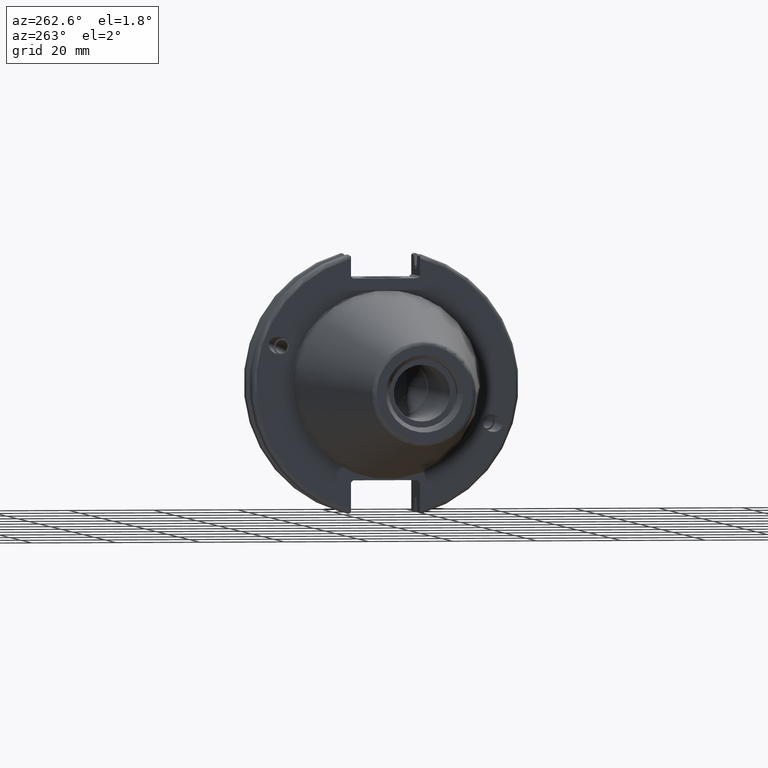
[diagram: clean part render]
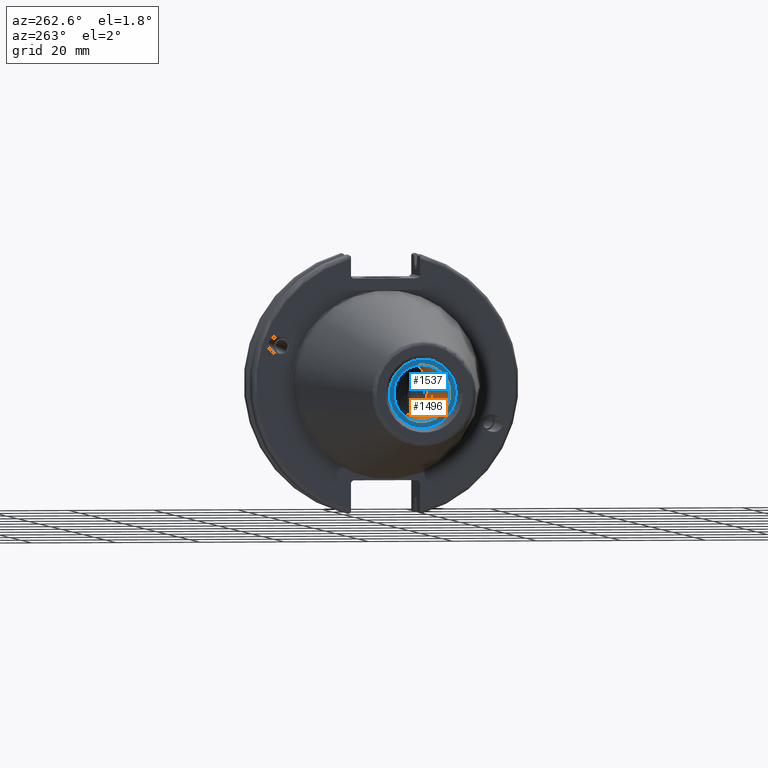
[diagram: same view with the hole feature highlighted: cylindrical wall and planar end face, labeled with their STEP entity ids]
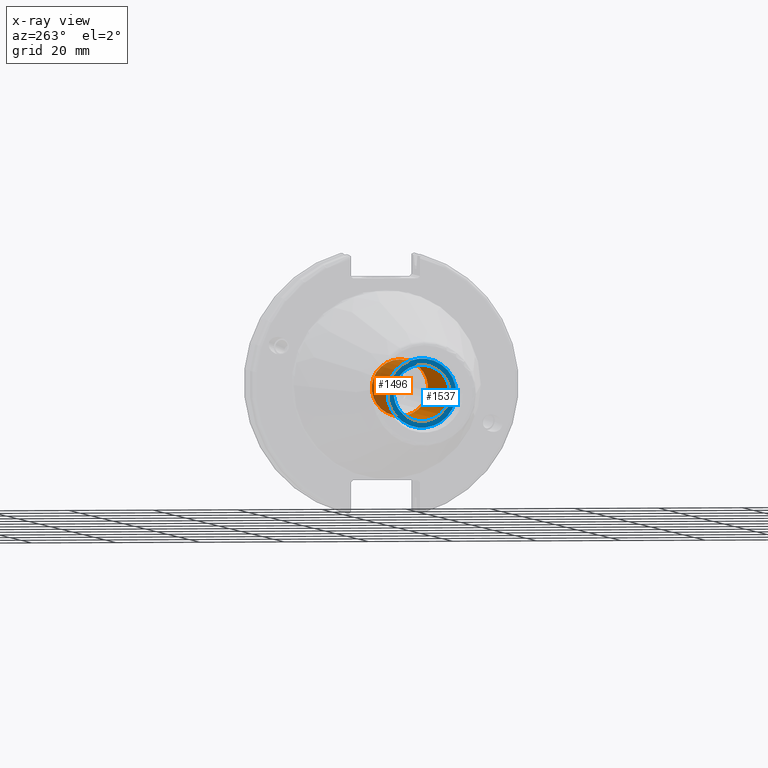
[diagram: x-ray of the same camera — body ghosted, the hole faces saturated]
A machine part, auxiliary view. The highlighted faces form one hole feature of diameter 13.3858 mm: the cylindrical wall (entity #1496, orange) and its adjacent planar end face (entity #1537, blue) — they share a circular edge in the B-rep.
The next image is the same camera in x-ray (body ghosted, the hole faces saturated) — the bore reads through the body.
Wall:
#97=CYLINDRICAL_SURFACE('',#1663,6.6929);
#202=LINE('',#2638,#296);
#296=VECTOR('',#1986,6.6929);
#396=FACE_OUTER_BOUND('',#489,.T.);
#489=EDGE_LOOP('',(#1202,#1203,#1204,#1205));
#582=CIRCLE('',#1662,6.6929);
#583=CIRCLE('',#1664,6.6929);
#705=VERTEX_POINT('',#2632);
#706=VERTEX_POINT('',#2636);
#888=EDGE_CURVE('',#705,#705,#582,.T.);
#890=EDGE_CURVE('',#706,#706,#583,.T.);
#891=EDGE_CURVE('',#706,#705,#202,.T.);
#1202=ORIENTED_EDGE('',*,*,#890,.F.);
#1203=ORIENTED_EDGE('',*,*,#891,.T.);
#1204=ORIENTED_EDGE('',*,*,#888,.F.);
#1205=ORIENTED_EDGE('',*,*,#891,.F.);
#1496=ADVANCED_FACE('',(#396),#97,.F.);
#1662=AXIS2_PLACEMENT_3D('',#2633,#1979,#1980);
#1663=AXIS2_PLACEMENT_3D('',#2635,#1982,#1983);
#1664=AXIS2_PLACEMENT_3D('',#2637,#1984,#1985);
#1979=DIRECTION('center_axis',(-1.,0.,0.));
#1980=DIRECTION('ref_axis',(0.,0.,1.));
#1982=DIRECTION('center_axis',(-1.,0.,0.));
#1983=DIRECTION('ref_axis',(0.,0.,1.));
#1984=DIRECTION('center_axis',(1.,0.,0.));
#1985=DIRECTION('ref_axis',(0.,0.,1.));
#1986=DIRECTION('',(1.,0.,0.));
#2632=CARTESIAN_POINT('',(-23.25,-8.19643856201332E-16,-6.6929));
#2633=CARTESIAN_POINT('Origin',(-23.25,0.,0.));
#2635=CARTESIAN_POINT('Origin',(-45.75,0.,0.));
#2636=CARTESIAN_POINT('',(-63.45,8.19643856201332E-16,-6.6929));
#2637=CARTESIAN_POINT('Origin',(-63.45,0.,0.));
#2638=CARTESIAN_POINT('',(-45.75,-8.19643856201332E-16,-6.6929));
End face:
#120=FACE_BOUND('',#536,.T.);
#154=PLANE('',#1731);
#437=FACE_OUTER_BOUND('',#535,.T.);
#535=EDGE_LOOP('',(#1424));
#536=EDGE_LOOP('',(#1425));
#583=CIRCLE('',#1664,6.6929);
#610=CIRCLE('',#1732,8.14999999999999);
#706=VERTEX_POINT('',#2636);
#761=VERTEX_POINT('',#2940);
#890=EDGE_CURVE('',#706,#706,#583,.T.);
#986=EDGE_CURVE('',#761,#761,#610,.T.);
#1424=ORIENTED_EDGE('',*,*,#986,.F.);
#1425=ORIENTED_EDGE('',*,*,#890,.T.);
#1537=ADVANCED_FACE('',(#437,#120),#154,.T.);
#1664=AXIS2_PLACEMENT_3D('',#2637,#1984,#1985);
#1731=AXIS2_PLACEMENT_3D('',#2939,#2163,#2164);
#1732=AXIS2_PLACEMENT_3D('',#2941,#2165,#2166);
#1984=DIRECTION('center_axis',(1.,0.,0.));
#1985=DIRECTION('ref_axis',(0.,0.,1.));
#2163=DIRECTION('center_axis',(-1.,0.,0.));
#2164=DIRECTION('ref_axis',(0.,0.,1.));
#2165=DIRECTION('center_axis',(1.,0.,0.));
#2166=DIRECTION('ref_axis',(0.,0.,-1.));
#2636=CARTESIAN_POINT('',(-63.45,8.19643856201332E-16,-6.6929));
#2637=CARTESIAN_POINT('Origin',(-63.45,0.,0.));
#2939=CARTESIAN_POINT('Origin',(-63.45,8.14999999999999,0.));
#2940=CARTESIAN_POINT('',(-63.45,-8.14999999999999,-9.98087141305092E-16));
#2941=CARTESIAN_POINT('Origin',(-63.45,0.,0.));